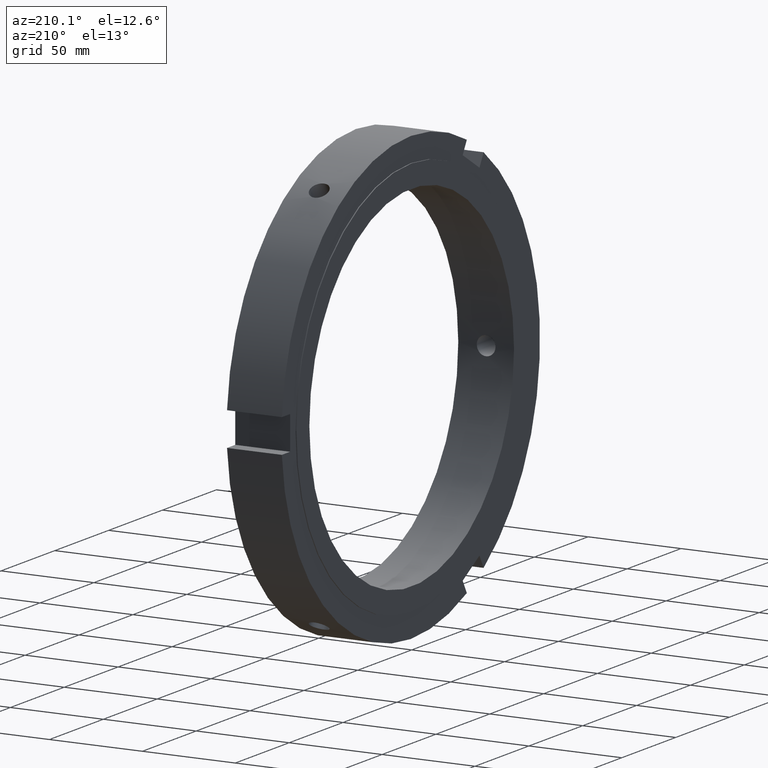
[diagram: clean part render]
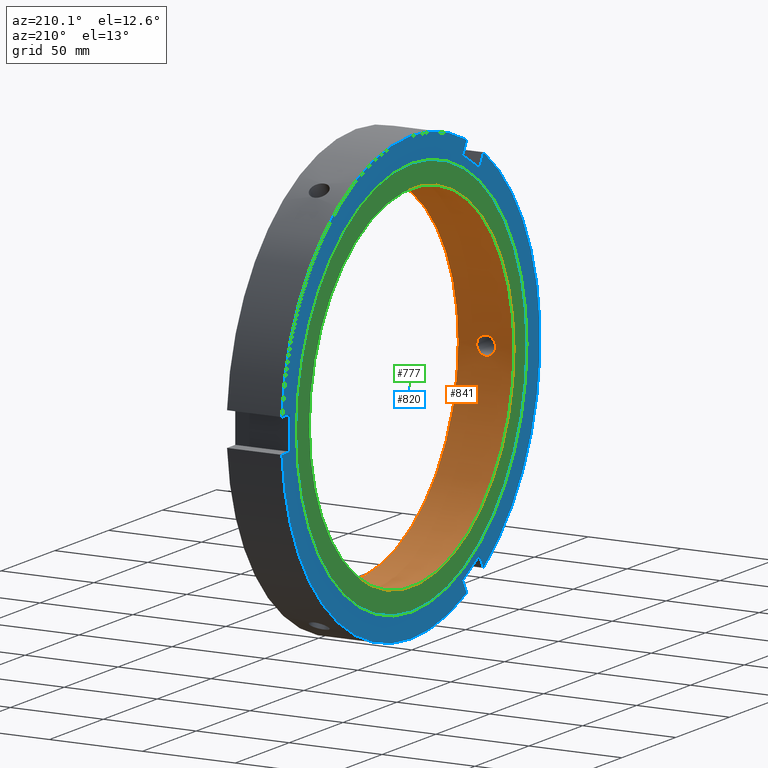
[diagram: same view with three faces highlighted in distinct colors, each labeled with its STEP entity id]
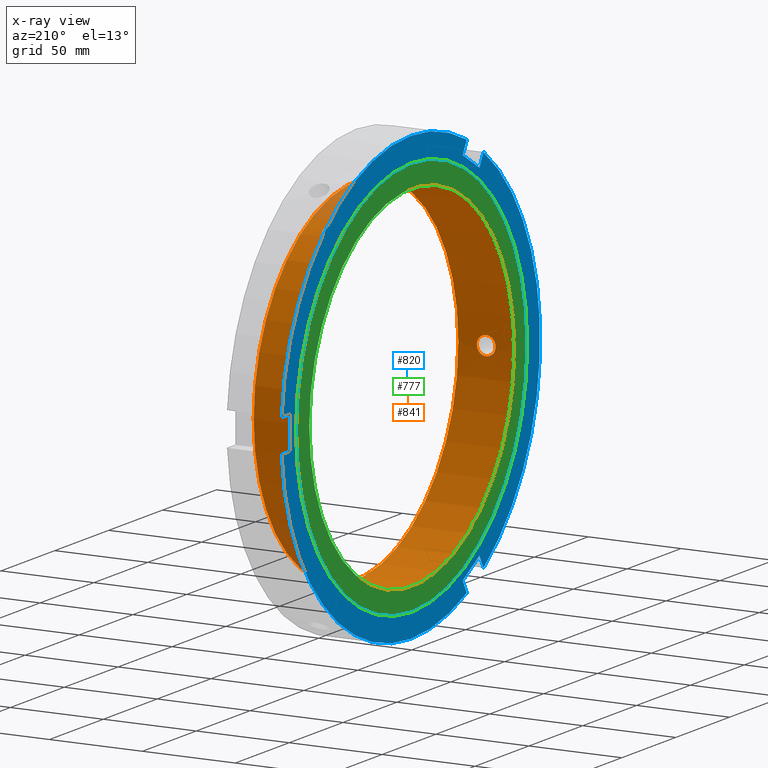
[diagram: x-ray of the same camera — body ghosted, the three highlighted faces saturated]
A machine part, auxiliary view with three faces highlighted in distinct colors.
The next image is the same camera in x-ray (body ghosted, the three faces saturated) — at least one of them is partly hidden behind the body in this view.
Their STEP definitions:

[orange] entity #841 — the highlighted cylindrical surface (bore or boss wall) has radius 95 mm, axis along (1, 0, 0).
#114=CARTESIAN_POINT('',(14.999999999999973,51.783860698352228,79.645663856695009));
#115=VERTEX_POINT('',#114);
#116=CARTESIAN_POINT('',(14.999999999999973,51.783860698352193,79.645663856695023));
#117=CARTESIAN_POINT('',(14.365405922573267,51.783860698352193,79.645663856695023));
#118=CARTESIAN_POINT('',(13.688594093724504,51.677498422244099,79.715135366105599));
#119=CARTESIAN_POINT('',(12.443672412465872,51.243481062656656,79.994826695966907));
#120=CARTESIAN_POINT('',(11.87555248484988,50.915648892237982,80.2047267529273));
#121=CARTESIAN_POINT('',(10.978417487118989,50.155447053533173,80.682294365374048));
#122=CARTESIAN_POINT('',(10.589558879847743,49.672339504558593,80.981765227640324));
#123=CARTESIAN_POINT('',(10.073846861760039,48.606687451202106,81.62583871703643));
#124=CARTESIAN_POINT('',(9.946999999999978,48.023953164043377,81.970132531836015));
#125=CARTESIAN_POINT('',(9.946999999999971,46.924605209366476,82.604383304642283));
#126=CARTESIAN_POINT('',(10.073849792477727,46.334855971479286,82.936534437479366));
#127=CARTESIAN_POINT('',(10.589566734009567,45.243854692328931,83.536705914099358));
#128=CARTESIAN_POINT('',(10.978427180363777,44.74277493882262,83.805045150084567));
#129=CARTESIAN_POINT('',(11.875560918021769,43.948813577077857,84.224125313041199));
#130=CARTESIAN_POINT('',(12.443677101460217,43.602999628941603,84.402873625882989));
#131=CARTESIAN_POINT('',(13.688594075909243,43.14361175968827,84.638616584627243));
#132=CARTESIAN_POINT('',(14.365405097780597,43.030226370677866,84.695924450283997));
#133=CARTESIAN_POINT('',(15.63459490221935,43.030226370677866,84.695924450283997));
#134=CARTESIAN_POINT('',(16.311405924090703,43.14361175968827,84.638616584627243));
#135=CARTESIAN_POINT('',(17.556322898539729,43.602999628941603,84.402873625882989));
#136=CARTESIAN_POINT('',(18.124439081978178,43.948813577077857,84.224125313041199));
#137=CARTESIAN_POINT('',(19.02157281963617,44.742774938822627,83.805045150084567));
#138=CARTESIAN_POINT('',(19.410433265990381,45.243854692328938,83.536705914099343));
#139=CARTESIAN_POINT('',(19.926150207522223,46.3348559714793,82.936534437479352));
#140=CARTESIAN_POINT('',(20.052999999999976,46.924605209366476,82.604383304642283));
#141=CARTESIAN_POINT('',(20.052999999999976,48.023953164043377,81.970132531836015));
#142=CARTESIAN_POINT('',(19.926153138239911,48.606687451202106,81.62583871703643));
#143=CARTESIAN_POINT('',(19.410441120152203,49.672339504558593,80.981765227640324));
#144=CARTESIAN_POINT('',(19.021582512880961,50.155447053533194,80.682294365374048));
#145=CARTESIAN_POINT('',(18.124447515150063,50.915648892238003,80.204726752927314));
#146=CARTESIAN_POINT('',(17.556327587534078,51.243481062656656,79.994826695966907));
#147=CARTESIAN_POINT('',(16.311405906275446,51.677498422244099,79.715135366105599));
#148=CARTESIAN_POINT('',(15.634594077426682,51.783860698352193,79.645663856695023));
#149=CARTESIAN_POINT('',(14.999999999999975,51.783860698352193,79.645663856695023));
#150=B_SPLINE_CURVE_WITH_KNOTS('',3,(#116,#117,#118,#119,#120,#121,#122,#123,#124,#125,#126,#127,#128,#129,#130,#131,#132,#133,#134,#135,#136,#137,#138,#139,#140,#141,#142,#143,#144,#145,#146,#147,#148,#149),.UNSPECIFIED.,.T.,.U.,(4,2,2,2,2,2,2,2,2,2,2,2,2,2,2,2,4),(0.0,0.190378223228012,0.380756446456025,0.571133522306524,0.761510598157024,0.951890133730661,1.142269669304298,1.33264813997011,1.523026610635923,1.713405081301736,1.903783551967548,2.094163087541185,2.284542623114822,2.474919698965322,2.665296774815822,2.855674998043835,3.046053221271847),.UNSPECIFIED.);
#151=EDGE_CURVE('',#115,#115,#150,.T.);
#202=CARTESIAN_POINT('',(14.999999999999973,43.083237851997879,-84.668970799155105));
#203=VERTEX_POINT('',#202);
#204=CARTESIAN_POINT('',(14.999999999999975,43.083237851997865,-84.66897079915509));
#205=CARTESIAN_POINT('',(14.365405922573265,43.083237851997865,-84.66897079915509));
#206=CARTESIAN_POINT('',(13.688594093724486,43.196583082040725,-84.611594120746432));
#207=CARTESIAN_POINT('',(12.443672412465855,43.6558115587126,-84.375569726590925));
#208=CARTESIAN_POINT('',(11.87555248484988,44.001506425505461,-84.196608767310749));
#209=CARTESIAN_POINT('',(10.978417487118993,44.795193029261426,-83.777038469212101));
#210=CARTESIAN_POINT('',(10.589558879847729,45.296096178164554,-83.508390490173241));
#211=CARTESIAN_POINT('',(10.073846861760032,46.386706208563908,-82.907545485069534));
#212=CARTESIAN_POINT('',(9.946999999999974,46.976240542125574,-82.575029696133669));
#213=CARTESIAN_POINT('',(9.946999999999973,48.075191801084181,-81.940091826188137));
#214=CARTESIAN_POINT('',(10.073849792477734,48.657717738960443,-81.595429570733828));
#215=CARTESIAN_POINT('',(10.589566734009594,49.722982123915358,-80.950680485738303));
#216=CARTESIAN_POINT('',(10.978427180363774,50.205910595863834,-80.650902307872428));
#217=CARTESIAN_POINT('',(11.875560918021771,50.96582534407878,-80.172851680456489));
#218=CARTESIAN_POINT('',(12.443677101460233,51.293532897951465,-79.96274217280839));
#219=CARTESIAN_POINT('',(13.688594075909258,51.727386223613948,-79.682772087216719));
#220=CARTESIAN_POINT('',(14.365405097780597,51.833708985614592,-79.613231392744098));
#221=CARTESIAN_POINT('',(15.63459490221935,51.833708985614592,-79.613231392744098));
#222=CARTESIAN_POINT('',(16.311405924090685,51.727386223613948,-79.682772087216719));
#223=CARTESIAN_POINT('',(17.556322898539712,51.293532897951465,-79.96274217280839));
#224=CARTESIAN_POINT('',(18.124439081978178,50.96582534407878,-80.172851680456489));
#225=CARTESIAN_POINT('',(19.021572819636173,50.205910595863834,-80.650902307872428));
#226=CARTESIAN_POINT('',(19.410433265990349,49.722982123915351,-80.950680485738303));
#227=CARTESIAN_POINT('',(19.926150207522213,48.657717738960436,-81.595429570733828));
#228=CARTESIAN_POINT('',(20.052999999999976,48.075191801084181,-81.940091826188137));
#229=CARTESIAN_POINT('',(20.052999999999976,46.976240542125574,-82.575029696133669));
#230=CARTESIAN_POINT('',(19.926153138239926,46.386706208563908,-82.907545485069519));
#231=CARTESIAN_POINT('',(19.410441120152232,45.296096178164554,-83.508390490173227));
#232=CARTESIAN_POINT('',(19.021582512880954,44.795193029261426,-83.777038469212101));
#233=CARTESIAN_POINT('',(18.124447515150067,44.001506425505461,-84.196608767310749));
#234=CARTESIAN_POINT('',(17.556327587534085,43.6558115587126,-84.375569726590939));
#235=CARTESIAN_POINT('',(16.311405906275457,43.196583082040725,-84.611594120746446));
#236=CARTESIAN_POINT('',(15.63459407742668,43.083237851997865,-84.66897079915509));
#237=CARTESIAN_POINT('',(14.999999999999972,43.083237851997865,-84.66897079915509));
#238=B_SPLINE_CURVE_WITH_KNOTS('',3,(#204,#205,#206,#207,#208,#209,#210,#211,#212,#213,#214,#215,#216,#217,#218,#219,#220,#221,#222,#223,#224,#225,#226,#227,#228,#229,#230,#231,#232,#233,#234,#235,#236,#237),.UNSPECIFIED.,.T.,.U.,(4,2,2,2,2,2,2,2,2,2,2,2,2,2,2,2,4),(0.0,0.190378223228013,0.380756446456026,0.571133522306526,0.761510598157025,0.951890133730662,1.1422696693043,1.332648139970112,1.523026610635924,1.713405081301737,1.903783551967549,2.094163087541186,2.284542623114823,2.474919698965323,2.665296774815822,2.855674998043836,3.046053221271849),.UNSPECIFIED.);
#239=EDGE_CURVE('',#203,#203,#238,.T.);
#290=CARTESIAN_POINT('',(14.999999999999973,-94.867098550350079,5.023306942460057));
#291=VERTEX_POINT('',#290);
#292=CARTESIAN_POINT('',(14.999999999999973,-94.867098550350079,5.023306942460057));
#293=CARTESIAN_POINT('',(14.365405922573263,-94.867098550350079,5.023306942460057));
#294=CARTESIAN_POINT('',(13.688594093724502,-94.874081504284845,4.896458754640831));
#295=CARTESIAN_POINT('',(12.443672412465867,-94.89929262136927,4.380743030624009));
#296=CARTESIAN_POINT('',(11.875552484849884,-94.917155317743436,3.99188201438343));
#297=CARTESIAN_POINT('',(10.978417487118985,-94.950640082794564,3.094744103838053));
#298=CARTESIAN_POINT('',(10.589558879847729,-94.968435682723111,2.526625262532878));
#299=CARTESIAN_POINT('',(10.073846861760028,-94.993393659765985,1.281706768033065));
#300=CARTESIAN_POINT('',(9.946999999999973,-95.000193706168943,0.604897164297602));
#301=CARTESIAN_POINT('',(9.946999999999974,-94.999797010450635,-0.66429147845421));
#302=CARTESIAN_POINT('',(10.073849792477729,-94.992573710439729,-1.341104866745554));
#303=CARTESIAN_POINT('',(10.589566734009582,-94.966836816244268,-2.586025428361067));
#304=CARTESIAN_POINT('',(10.978427180363781,-94.948685534686433,-3.154142842212191));
#305=CARTESIAN_POINT('',(11.875560918021772,-94.914638921156609,-4.051273632584762));
#306=CARTESIAN_POINT('',(12.443677101460224,-94.896532526893068,-4.440131453074637));
#307=CARTESIAN_POINT('',(13.688594075909251,-94.870997983302217,-4.955844497410546));
#308=CARTESIAN_POINT('',(14.365405097780597,-94.863935356292444,-5.082693057539942));
#309=CARTESIAN_POINT('',(15.63459490221935,-94.863935356292458,-5.082693057539943));
#310=CARTESIAN_POINT('',(16.311405924090693,-94.870997983302217,-4.955844497410548));
#311=CARTESIAN_POINT('',(17.556322898539722,-94.896532526893068,-4.440131453074639));
#312=CARTESIAN_POINT('',(18.124439081978174,-94.914638921156609,-4.051273632584762));
#313=CARTESIAN_POINT('',(19.021572819636166,-94.948685534686433,-3.154142842212191));
#314=CARTESIAN_POINT('',(19.410433265990367,-94.966836816244268,-2.586025428361067));
#315=CARTESIAN_POINT('',(19.926150207522216,-94.992573710439729,-1.341104866745554));
#316=CARTESIAN_POINT('',(20.052999999999976,-94.999797010450635,-0.66429147845421));
#317=CARTESIAN_POINT('',(20.052999999999976,-95.000193706168943,0.604897164297602));
#318=CARTESIAN_POINT('',(19.926153138239918,-94.993393659766028,1.281706768033065));
#319=CARTESIAN_POINT('',(19.410441120152218,-94.96843568272314,2.526625262532879));
#320=CARTESIAN_POINT('',(19.021582512880958,-94.950640082794564,3.094744103838052));
#321=CARTESIAN_POINT('',(18.124447515150063,-94.917155317743436,3.991882014383429));
#322=CARTESIAN_POINT('',(17.556327587534081,-94.89929262136927,4.380743030624009));
#323=CARTESIAN_POINT('',(16.311405906275446,-94.874081504284845,4.896458754640831));
#324=CARTESIAN_POINT('',(15.634594077426684,-94.867098550350079,5.023306942460055));
#325=CARTESIAN_POINT('',(14.999999999999973,-94.867098550350079,5.023306942460055));
#326=B_SPLINE_CURVE_WITH_KNOTS('',3,(#292,#293,#294,#295,#296,#297,#298,#299,#300,#301,#302,#303,#304,#305,#306,#307,#308,#309,#310,#311,#312,#313,#314,#315,#316,#317,#318,#319,#320,#321,#322,#323,#324,#325),.UNSPECIFIED.,.T.,.U.,(4,2,2,2,2,2,2,2,2,2,2,2,2,2,2,2,4),(0.0,0.190378223228013,0.380756446456026,0.571133522306526,0.761510598157026,0.951890133730663,1.1422696693043,1.332648139970112,1.523026610635925,1.713405081301738,1.903783551967551,2.094163087541187,2.284542623114824,2.474919698965324,2.665296774815825,2.855674998043837,3.046053221271851),.UNSPECIFIED.);
#327=EDGE_CURVE('',#291,#291,#326,.T.);
#596=CARTESIAN_POINT('',(29.999999999999979,95.0,0.0));
#597=VERTEX_POINT('',#596);
#598=CARTESIAN_POINT('',(29.999999999999979,0.0,0.0));
#599=DIRECTION('',(1.0,0.0,0.0));
#600=DIRECTION('',(0.0,1.0,0.0));
#601=AXIS2_PLACEMENT_3D('',#598,#599,#600);
#602=CIRCLE('',#601,95.0);
#603=EDGE_CURVE('',#597,#597,#602,.T.);
#766=CARTESIAN_POINT('',(-2.819171E-014,95.0,0.0));
#767=VERTEX_POINT('',#766);
#768=CARTESIAN_POINT('',(-2.819359E-014,0.0,0.0));
#769=DIRECTION('',(1.0,0.0,0.0));
#770=DIRECTION('',(0.0,1.0,0.0));
#771=AXIS2_PLACEMENT_3D('',#768,#769,#770);
#772=CIRCLE('',#771,95.0);
#773=EDGE_CURVE('',#767,#767,#772,.T.);
#821=CARTESIAN_POINT('',(14.999999999999975,0.0,0.0));
#822=DIRECTION('',(1.0,0.0,0.0));
#823=DIRECTION('',(0.0,1.0,0.0));
#824=AXIS2_PLACEMENT_3D('',#821,#822,#823);
#825=CYLINDRICAL_SURFACE('',#824,95.0);
#826=ORIENTED_EDGE('',*,*,#773,.F.);
#827=EDGE_LOOP('',(#826));
#828=FACE_OUTER_BOUND('',#827,.T.);
#829=ORIENTED_EDGE('',*,*,#151,.T.);
#830=EDGE_LOOP('',(#829));
#831=FACE_BOUND('',#830,.T.);
#832=ORIENTED_EDGE('',*,*,#239,.T.);
#833=EDGE_LOOP('',(#832));
#834=FACE_BOUND('',#833,.T.);
#835=ORIENTED_EDGE('',*,*,#327,.T.);
#836=EDGE_LOOP('',(#835));
#837=FACE_BOUND('',#836,.T.);
#838=ORIENTED_EDGE('',*,*,#603,.T.);
#839=EDGE_LOOP('',(#838));
#840=FACE_BOUND('',#839,.T.);
#841=ADVANCED_FACE('',(#828,#831,#834,#837,#840),#825,.F.);

[blue] entity #820 — the highlighted planar face has unit normal (-1, 0, 0).
#337=CARTESIAN_POINT('',(0.499999999999972,-63.794228634059991,-92.494845223857112));
#338=VERTEX_POINT('',#337);
#339=CARTESIAN_POINT('',(0.499999999999972,-67.625240659597395,-99.130352696495237));
#340=VERTEX_POINT('',#339);
#341=CARTESIAN_POINT('',(0.499999999999969,-63.794228634060019,-92.494845223857112));
#342=DIRECTION('',(0.0,-0.5,-0.866025403784439));
#343=VECTOR('',#342,7.662024051074787);
#344=LINE('',#341,#343);
#345=EDGE_CURVE('',#338,#340,#344,.T.);
#377=CARTESIAN_POINT('',(0.499999999999972,-48.205771365940073,-101.49484522385708));
#378=VERTEX_POINT('',#377);
#379=CARTESIAN_POINT('',(0.499999999999969,-48.205771365940109,-101.49484522385713));
#380=DIRECTION('',(0.0,-0.866025403784439,0.5));
#381=VECTOR('',#380,18.000000000000018);
#382=LINE('',#379,#381);
#383=EDGE_CURVE('',#378,#338,#382,.T.);
#408=CARTESIAN_POINT('',(0.499999999999972,-52.036783391477499,-108.13035269649525));
#409=VERTEX_POINT('',#408);
#410=CARTESIAN_POINT('',(0.499999999999969,-52.036783391477499,-108.13035269649527));
#411=DIRECTION('',(0.0,0.5,0.866025403784439));
#412=VECTOR('',#411,7.662024051074854);
#413=LINE('',#410,#412);
#414=EDGE_CURVE('',#409,#378,#413,.T.);
#439=CARTESIAN_POINT('',(0.499999999999972,-48.205771365940038,101.49484522385713));
#440=VERTEX_POINT('',#439);
#441=CARTESIAN_POINT('',(0.499999999999972,-52.036783391477435,108.13035269649527));
#442=VERTEX_POINT('',#441);
#443=CARTESIAN_POINT('',(0.499999999999969,-48.205771365940038,101.49484522385713));
#444=DIRECTION('',(0.0,-0.5,0.866025403784439));
#445=VECTOR('',#444,7.662024051074822);
#446=LINE('',#443,#445);
#447=EDGE_CURVE('',#440,#442,#446,.T.);
#479=CARTESIAN_POINT('',(0.499999999999972,-63.794228634059934,92.494845223857126));
#480=VERTEX_POINT('',#479);
#481=CARTESIAN_POINT('',(0.499999999999967,-63.794228634059962,92.494845223857126));
#482=DIRECTION('',(0.0,0.866025403784439,0.5));
#483=VECTOR('',#482,18.000000000000014);
#484=LINE('',#481,#483);
#485=EDGE_CURVE('',#480,#440,#484,.T.);
#510=CARTESIAN_POINT('',(0.499999999999972,-67.625240659597353,99.130352696495265));
#511=VERTEX_POINT('',#510);
#512=CARTESIAN_POINT('',(0.499999999999969,-67.625240659597324,99.130352696495265));
#513=DIRECTION('',(0.0,0.5,-0.866025403784439));
#514=VECTOR('',#513,7.662024051074787);
#515=LINE('',#512,#514);
#516=EDGE_CURVE('',#511,#480,#515,.T.);
#615=CARTESIAN_POINT('',(0.499999999999972,119.66202405107479,9.000000000000016));
#616=VERTEX_POINT('',#615);
#623=CARTESIAN_POINT('',(0.499999999999967,0.0,0.0));
#624=DIRECTION('',(1.0,0.0,0.0));
#625=DIRECTION('',(0.0,1.0,0.0));
#626=AXIS2_PLACEMENT_3D('',#623,#624,#625);
#627=CIRCLE('',#626,120.0);
#628=EDGE_CURVE('',#616,#442,#627,.T.);
#642=CARTESIAN_POINT('',(0.499999999999972,119.66202405107479,-8.999999999999988));
#643=VERTEX_POINT('',#642);
#644=CARTESIAN_POINT('',(0.499999999999967,0.0,0.0));
#645=DIRECTION('',(1.0,0.0,0.0));
#646=DIRECTION('',(0.0,1.0,0.0));
#647=AXIS2_PLACEMENT_3D('',#644,#645,#646);
#648=CIRCLE('',#647,120.0);
#649=EDGE_CURVE('',#409,#643,#648,.T.);
#669=CARTESIAN_POINT('',(0.499999999999972,112.0,-8.999999999999986));
#670=VERTEX_POINT('',#669);
#671=CARTESIAN_POINT('',(0.499999999999969,111.99999999999999,-8.999999999999986));
#672=DIRECTION('',(0.0,1.0,0.0));
#673=VECTOR('',#672,7.662024051074795);
#674=LINE('',#671,#673);
#675=EDGE_CURVE('',#670,#643,#674,.T.);
#693=CARTESIAN_POINT('',(0.499999999999972,112.0,9.000000000000014));
#694=VERTEX_POINT('',#693);
#695=CARTESIAN_POINT('',(0.499999999999969,112.0,9.000000000000014));
#696=DIRECTION('',(0.0,0.0,-1.0));
#697=VECTOR('',#696,18.0);
#698=LINE('',#695,#697);
#699=EDGE_CURVE('',#694,#670,#698,.T.);
#717=CARTESIAN_POINT('',(0.499999999999969,119.66202405107478,9.000000000000016));
#718=DIRECTION('',(0.0,-1.0,0.0));
#719=VECTOR('',#718,7.662024051074795);
#720=LINE('',#717,#719);
#721=EDGE_CURVE('',#616,#694,#720,.T.);
#737=CARTESIAN_POINT('',(0.499999999999967,0.0,0.0));
#738=DIRECTION('',(1.0,0.0,0.0));
#739=DIRECTION('',(0.0,1.0,0.0));
#740=AXIS2_PLACEMENT_3D('',#737,#738,#739);
#741=CIRCLE('',#740,120.0);
#742=EDGE_CURVE('',#511,#340,#741,.T.);
#783=CARTESIAN_POINT('',(0.499999999999972,107.00000000000001,0.0));
#784=VERTEX_POINT('',#783);
#785=CARTESIAN_POINT('',(0.499999999999972,0.0,0.0));
#786=DIRECTION('',(1.0,0.0,0.0));
#787=DIRECTION('',(0.0,1.0,0.0));
#788=AXIS2_PLACEMENT_3D('',#785,#786,#787);
#789=CIRCLE('',#788,107.00000000000001);
#790=EDGE_CURVE('',#784,#784,#789,.T.);
#798=CARTESIAN_POINT('',(0.499999999999969,113.50000000000001,0.0));
#799=DIRECTION('',(-1.0,0.0,0.0));
#800=DIRECTION('',(0.0,0.0,1.0));
#801=AXIS2_PLACEMENT_3D('',#798,#799,#800);
#802=PLANE('',#801);
#803=ORIENTED_EDGE('',*,*,#345,.T.);
#804=ORIENTED_EDGE('',*,*,#742,.F.);
#805=ORIENTED_EDGE('',*,*,#516,.T.);
#806=ORIENTED_EDGE('',*,*,#485,.T.);
#807=ORIENTED_EDGE('',*,*,#447,.T.);
#808=ORIENTED_EDGE('',*,*,#628,.F.);
#809=ORIENTED_EDGE('',*,*,#721,.T.);
#810=ORIENTED_EDGE('',*,*,#699,.T.);
#811=ORIENTED_EDGE('',*,*,#675,.T.);
#812=ORIENTED_EDGE('',*,*,#649,.F.);
#813=ORIENTED_EDGE('',*,*,#414,.T.);
#814=ORIENTED_EDGE('',*,*,#383,.T.);
#815=EDGE_LOOP('',(#803,#804,#805,#806,#807,#808,#809,#810,#811,#812,#813,#814));
#816=FACE_OUTER_BOUND('',#815,.T.);
#817=ORIENTED_EDGE('',*,*,#790,.T.);
#818=EDGE_LOOP('',(#817));
#819=FACE_BOUND('',#818,.T.);
#820=ADVANCED_FACE('',(#816,#819),#802,.T.);

[green] entity #777 — the highlighted planar face has unit normal (-1, 0, 0).
#750=CARTESIAN_POINT('',(-2.963898E-014,101.00000000000001,0.0));
#751=DIRECTION('',(-1.0,0.0,0.0));
#752=DIRECTION('',(0.0,0.0,1.0));
#753=AXIS2_PLACEMENT_3D('',#750,#751,#752);
#754=PLANE('',#753);
#755=CARTESIAN_POINT('',(-3.108624E-014,107.00000000000001,0.0));
#756=VERTEX_POINT('',#755);
#757=CARTESIAN_POINT('',(-3.108624E-014,0.0,0.0));
#758=DIRECTION('',(1.0,0.0,0.0));
#759=DIRECTION('',(0.0,1.0,0.0));
#760=AXIS2_PLACEMENT_3D('',#757,#758,#759);
#761=CIRCLE('',#760,107.00000000000001);
#762=EDGE_CURVE('',#756,#756,#761,.T.);
#763=ORIENTED_EDGE('',*,*,#762,.F.);
#764=EDGE_LOOP('',(#763));
#765=FACE_OUTER_BOUND('',#764,.T.);
#766=CARTESIAN_POINT('',(-2.819171E-014,95.0,0.0));
#767=VERTEX_POINT('',#766);
#768=CARTESIAN_POINT('',(-2.819359E-014,0.0,0.0));
#769=DIRECTION('',(1.0,0.0,0.0));
#770=DIRECTION('',(0.0,1.0,0.0));
#771=AXIS2_PLACEMENT_3D('',#768,#769,#770);
#772=CIRCLE('',#771,95.0);
#773=EDGE_CURVE('',#767,#767,#772,.T.);
#774=ORIENTED_EDGE('',*,*,#773,.T.);
#775=EDGE_LOOP('',(#774));
#776=FACE_BOUND('',#775,.T.);
#777=ADVANCED_FACE('',(#765,#776),#754,.T.);